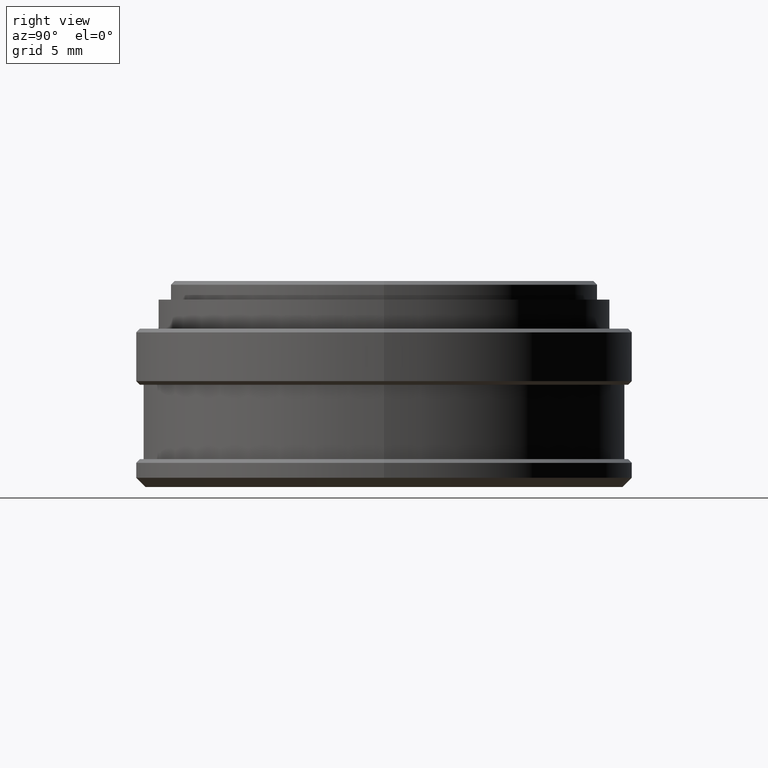
[diagram: clean part render]
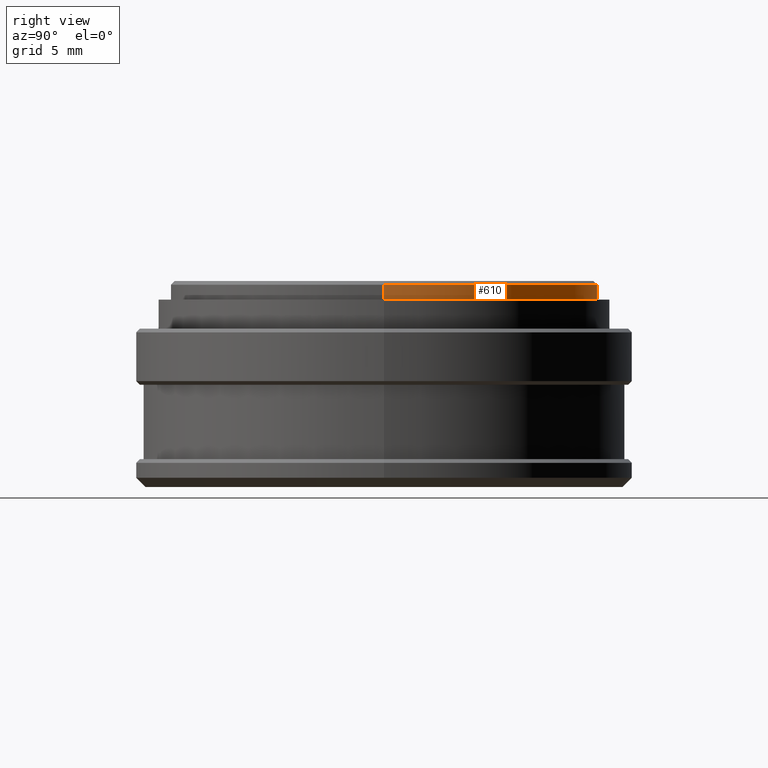
[diagram: same view with one face highlighted and labeled with its STEP entity id]
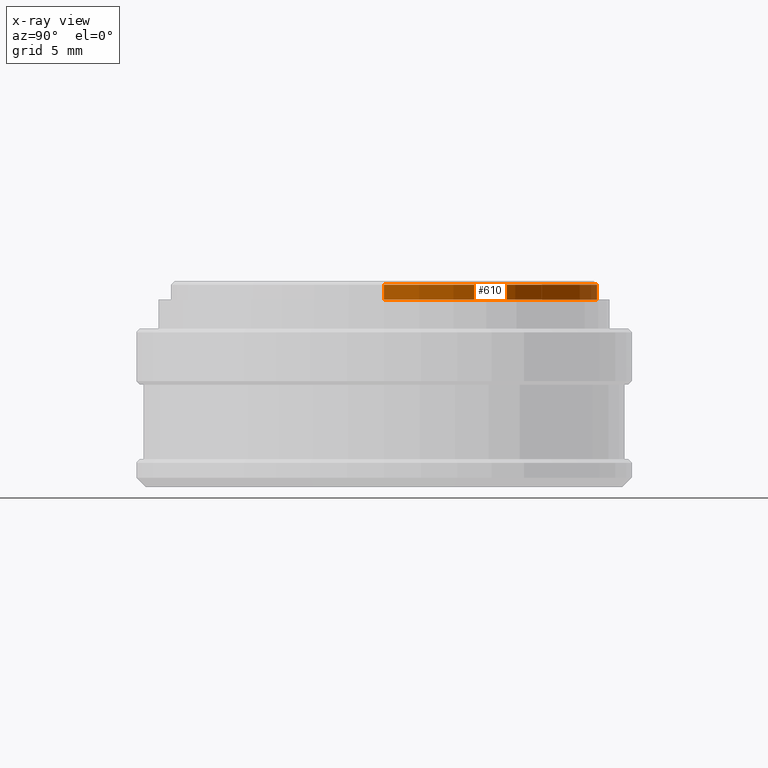
[diagram: x-ray of the same camera — body ghosted, the highlighted face saturated]
A machine part, right view. The second image highlights one B-rep face of the part: STEP entity #610.
The next image is the same camera in x-ray: the body ghosted, the highlighted face saturated — about 0% of this face is hidden behind the body in this view.
In plain terms, the highlighted cylindrical surface (partial cylindrical patch) has radius 11.5 mm, axis along (-0, -0, -1).
Its self-contained STEP definition (entity closure, byte-faithful):
#78 = EDGE_CURVE ( 'NONE', #435, #104, #202, .T. ) ;
#104 = VERTEX_POINT ( 'NONE', #411 ) ;
#124 = AXIS2_PLACEMENT_3D ( 'NONE', #519, #512, #517 ) ;
#152 = ORIENTED_EDGE ( 'NONE', *, *, #266, .T. ) ;
#202 = CIRCLE ( 'NONE', #338, 11.50000000000000000 ) ;
#254 = EDGE_CURVE ( 'NONE', #781, #407, #320, .T. ) ;
#266 = EDGE_CURVE ( 'NONE', #104, #781, #798, .T. ) ;
#286 = EDGE_CURVE ( 'NONE', #435, #407, #731, .T. ) ;
#312 = FACE_OUTER_BOUND ( 'NONE', #717, .T. ) ;
#320 = CIRCLE ( 'NONE', #471, 11.50000000000000000 ) ;
#338 = AXIS2_PLACEMENT_3D ( 'NONE', #612, #351, #404 ) ;
#351 = DIRECTION ( 'NONE',  ( 0.0000000000000000000, 0.0000000000000000000, -1.000000000000000000 ) ) ;
#353 = VECTOR ( 'NONE', #689, 1000.000000000000000 ) ;
#391 = CARTESIAN_POINT ( 'NONE',  ( 11.50000000000000000, 1.408343819019456200E-015, 10.08400000000000000 ) ) ;
#404 = DIRECTION ( 'NONE',  ( 1.000000000000000000, 0.0000000000000000000, 0.0000000000000000000 ) ) ;
#407 = VERTEX_POINT ( 'NONE', #408 ) ;
#408 = CARTESIAN_POINT ( 'NONE',  ( -11.50000000000000000, 0.0000000000000000000, 10.08400000000000000 ) ) ;
#411 = CARTESIAN_POINT ( 'NONE',  ( 11.50000000000000000, 1.408343819019456200E-015, 10.88400000000000700 ) ) ;
#413 = ORIENTED_EDGE ( 'NONE', *, *, #78, .T. ) ;
#435 = VERTEX_POINT ( 'NONE', #788 ) ;
#471 = AXIS2_PLACEMENT_3D ( 'NONE', #772, #659, #655 ) ;
#500 = VECTOR ( 'NONE', #639, 1000.000000000000000 ) ;
#512 = DIRECTION ( 'NONE',  ( -0.0000000000000000000, -0.0000000000000000000, -1.000000000000000000 ) ) ;
#517 = DIRECTION ( 'NONE',  ( -1.000000000000000000, 0.0000000000000000000, 0.0000000000000000000 ) ) ;
#519 = CARTESIAN_POINT ( 'NONE',  ( 0.0000000000000000000, 0.0000000000000000000, 11.08400000000000000 ) ) ;
#572 = ORIENTED_EDGE ( 'NONE', *, *, #254, .T. ) ;
#610 = ADVANCED_FACE ( 'NONE', ( #312 ), #695, .T. ) ;
#612 = CARTESIAN_POINT ( 'NONE',  ( 0.0000000000000000000, 0.0000000000000000000, 10.88400000000000700 ) ) ;
#631 = ORIENTED_EDGE ( 'NONE', *, *, #286, .F. ) ;
#632 = CARTESIAN_POINT ( 'NONE',  ( 11.50000000000000000, 1.408343819019456200E-015, 11.08400000000000000 ) ) ;
#639 = DIRECTION ( 'NONE',  ( -0.0000000000000000000, -0.0000000000000000000, -1.000000000000000000 ) ) ;
#655 = DIRECTION ( 'NONE',  ( 1.000000000000000000, 0.0000000000000000000, 0.0000000000000000000 ) ) ;
#659 = DIRECTION ( 'NONE',  ( 0.0000000000000000000, 0.0000000000000000000, 1.000000000000000000 ) ) ;
#689 = DIRECTION ( 'NONE',  ( -0.0000000000000000000, -0.0000000000000000000, -1.000000000000000000 ) ) ;
#691 = CARTESIAN_POINT ( 'NONE',  ( -11.50000000000000000, 0.0000000000000000000, 11.08400000000000000 ) ) ;
#695 = CYLINDRICAL_SURFACE ( 'NONE', #124, 11.50000000000000000 ) ;
#717 = EDGE_LOOP ( 'NONE', ( #413, #152, #572, #631 ) ) ;
#731 = LINE ( 'NONE', #691, #353 ) ;
#772 = CARTESIAN_POINT ( 'NONE',  ( 0.0000000000000000000, 0.0000000000000000000, 10.08400000000000000 ) ) ;
#781 = VERTEX_POINT ( 'NONE', #391 ) ;
#788 = CARTESIAN_POINT ( 'NONE',  ( -11.50000000000000000, 0.0000000000000000000, 10.88400000000000700 ) ) ;
#798 = LINE ( 'NONE', #632, #500 ) ;